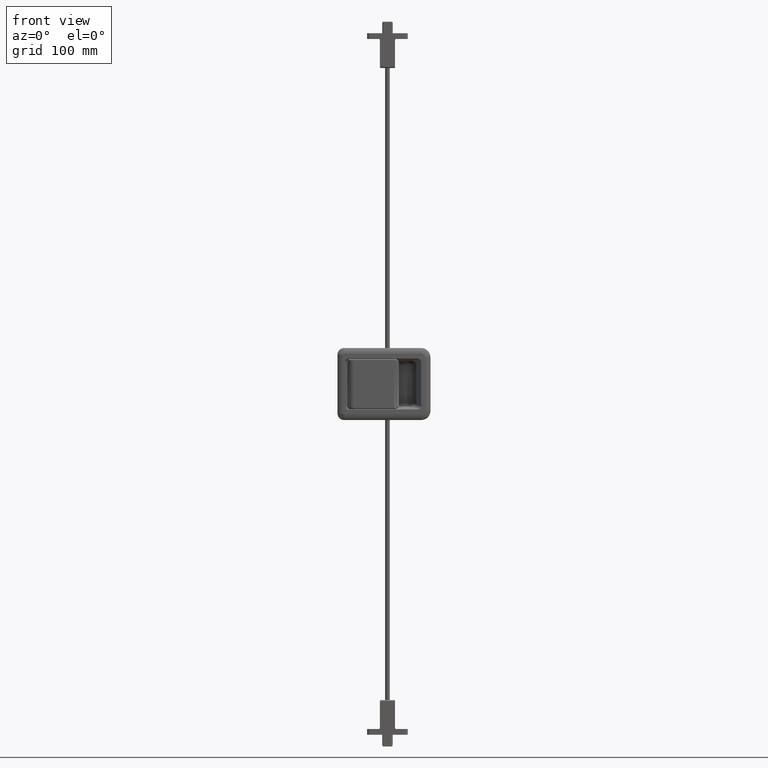
[diagram: clean part render]
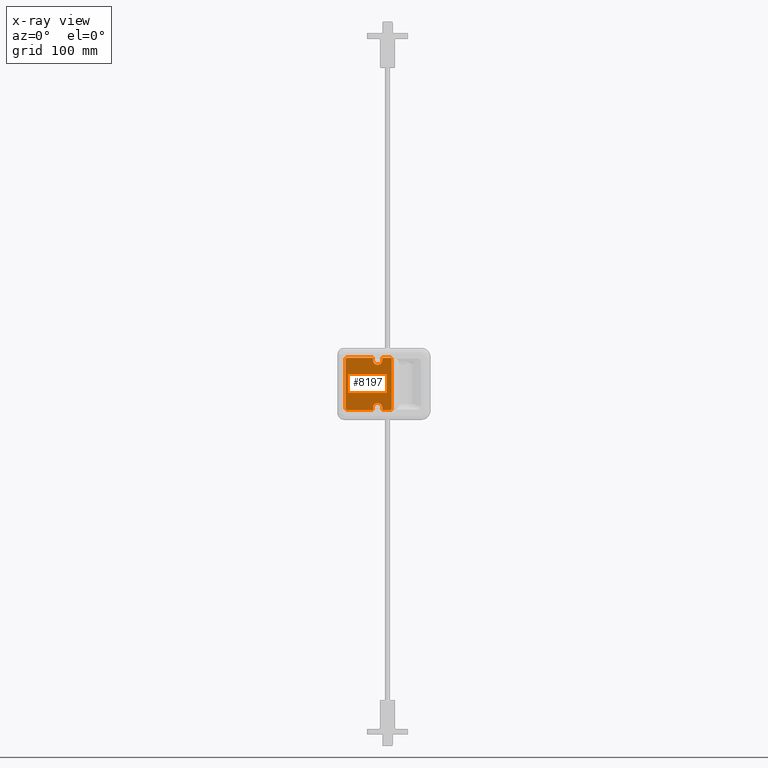
[diagram: x-ray — body ghosted, one internal face saturated and labeled with its STEP entity id]
A machine part, front view, then the same camera in x-ray: the body is ghosted and one INTERNAL B-rep face — a face not visible from any outside direction — is saturated and labeled: STEP entity #8197.
In plain terms, the highlighted face is a freeform B-spline surface patch.
Its self-contained STEP definition (entity closure, byte-faithful):
#7151=CARTESIAN_POINT('',(16.500000000000000,13.750000000000000,20.500000000000000));
#7152=VERTEX_POINT('',#7151);
#7153=CARTESIAN_POINT('',(16.500000000000000,13.750000000000000,22.449999999999999));
#7154=VERTEX_POINT('',#7153);
#7155=CARTESIAN_POINT('',(16.500000000000000,13.750000000000000,20.500000000000000));
#7156=CARTESIAN_POINT('',(16.500000000000000,13.750000000000000,22.449999999999999));
#7157=QUASI_UNIFORM_CURVE('',1,(#7155,#7156),.UNSPECIFIED.,.F.,.U.);
#7158=EDGE_CURVE('',#7152,#7154,#7157,.T.);
#7200=CARTESIAN_POINT('',(24.500000000000000,13.750000000000000,20.500000000000000));
#7201=VERTEX_POINT('',#7200);
#7202=CARTESIAN_POINT('',(20.499981883252950,13.750000000000000,16.500000000041030));
#7203=VERTEX_POINT('',#7202);
#7204=CARTESIAN_POINT('',(24.500000000000000,13.750000000000000,20.500000000000000));
#7205=CARTESIAN_POINT('',(24.500254233075971,13.750000000000011,20.041857580033071));
#7206=CARTESIAN_POINT('',(24.329639797546982,13.749999999999989,19.060145675611160));
#7207=CARTESIAN_POINT('',(23.541291267610241,13.750000000000011,17.743655497388200));
#7208=CARTESIAN_POINT('',(22.200915370813441,13.750000000000011,16.750280157867071));
#7209=CARTESIAN_POINT('',(21.089204154078882,13.749999999999989,16.499164993129469));
#7210=CARTESIAN_POINT('',(20.499981883252950,13.750000000000000,16.500000000041030));
#7211=B_SPLINE_CURVE_WITH_KNOTS('',3,(#7204,#7205,#7206,#7207,#7208,#7209,#7210),.UNSPECIFIED.,.F.,.U.,(4,1,1,1,4),(0.000000881623774,1.374586051367190,2.945560808224033,4.516498488839313,6.283825745046069),.UNSPECIFIED.);
#7212=EDGE_CURVE('',#7201,#7203,#7211,.T.);
#7214=CARTESIAN_POINT('',(20.499981883252950,13.750000000000000,16.500000000041030));
#7215=CARTESIAN_POINT('',(19.910752602650149,13.749999999999989,16.499168180203569));
#7216=CARTESIAN_POINT('',(18.799057106938029,13.750000000000000,16.750287032874141));
#7217=CARTESIAN_POINT('',(17.458677692135929,13.750000000000020,17.743638558698368));
#7218=CARTESIAN_POINT('',(16.670356223996411,13.749999999999959,19.060177457855701));
#7219=CARTESIAN_POINT('',(16.499739817277280,13.750000000000041,20.041837290952301));
#7220=CARTESIAN_POINT('',(16.500000000000000,13.750000000000000,20.500000000000000));
#7221=B_SPLINE_CURVE_WITH_KNOTS('',3,(#7214,#7215,#7216,#7217,#7218,#7219,#7220),.UNSPECIFIED.,.F.,.U.,(4,1,1,1,4),(0.000000977180087,1.767322467654096,3.338255002949419,4.909224635225035,6.283805321258684),.UNSPECIFIED.);
#7222=EDGE_CURVE('',#7203,#7152,#7221,.T.);
#7262=CARTESIAN_POINT('',(24.500000000000000,13.750000000000000,22.449999999999999));
#7263=VERTEX_POINT('',#7262);
#7264=CARTESIAN_POINT('',(24.500000000000000,13.750000000000000,22.449999999999999));
#7265=CARTESIAN_POINT('',(24.500000000000000,13.750000000000000,20.500000000000000));
#7266=QUASI_UNIFORM_CURVE('',1,(#7264,#7265),.UNSPECIFIED.,.F.,.U.);
#7267=EDGE_CURVE('',#7263,#7201,#7266,.T.);
#7290=CARTESIAN_POINT('',(16.500000000000000,13.750000000000000,-20.500000000000000));
#7291=VERTEX_POINT('',#7290);
#7292=CARTESIAN_POINT('',(16.500000000000000,13.750000000000000,-22.449999999999999));
#7293=VERTEX_POINT('',#7292);
#7294=CARTESIAN_POINT('',(16.500000000000000,13.750000000000000,-20.500000000000000));
#7295=CARTESIAN_POINT('',(16.500000000000000,13.750000000000000,-22.449999999999999));
#7296=QUASI_UNIFORM_CURVE('',1,(#7294,#7295),.UNSPECIFIED.,.F.,.U.);
#7297=EDGE_CURVE('',#7291,#7293,#7296,.T.);
#7339=CARTESIAN_POINT('',(20.499981883252950,13.750000000000000,-16.500000000041030));
#7340=VERTEX_POINT('',#7339);
#7341=CARTESIAN_POINT('',(20.499981883252950,13.750000000000000,-16.500000000041030));
#7342=CARTESIAN_POINT('',(19.910752602650149,13.749999999999989,-16.499168180203569));
#7343=CARTESIAN_POINT('',(18.799057106938029,13.750000000000000,-16.750287032874141));
#7344=CARTESIAN_POINT('',(17.458677692135929,13.750000000000020,-17.743638558698368));
#7345=CARTESIAN_POINT('',(16.670356223996411,13.749999999999959,-19.060177457855701));
#7346=CARTESIAN_POINT('',(16.499739817277280,13.750000000000041,-20.041837290952301));
#7347=CARTESIAN_POINT('',(16.500000000000000,13.750000000000000,-20.500000000000000));
#7348=B_SPLINE_CURVE_WITH_KNOTS('',3,(#7341,#7342,#7343,#7344,#7345,#7346,#7347),.UNSPECIFIED.,.F.,.U.,(4,1,1,1,4),(0.000000977180087,1.767322467654096,3.338255002949419,4.909224635225035,6.283805321258684),.UNSPECIFIED.);
#7349=EDGE_CURVE('',#7340,#7291,#7348,.T.);
#7351=CARTESIAN_POINT('',(24.500000000000000,13.750000000000000,-20.500000000000000));
#7352=VERTEX_POINT('',#7351);
#7353=CARTESIAN_POINT('',(24.500000000000000,13.750000000000000,-20.500000000000000));
#7354=CARTESIAN_POINT('',(24.500254233075971,13.750000000000011,-20.041857580033071));
#7355=CARTESIAN_POINT('',(24.329639797546982,13.749999999999989,-19.060145675611160));
#7356=CARTESIAN_POINT('',(23.541291267610241,13.750000000000011,-17.743655497388200));
#7357=CARTESIAN_POINT('',(22.200915370813441,13.750000000000011,-16.750280157867071));
#7358=CARTESIAN_POINT('',(21.089204154078882,13.749999999999989,-16.499164993129469));
#7359=CARTESIAN_POINT('',(20.499981883252950,13.750000000000000,-16.500000000041030));
#7360=B_SPLINE_CURVE_WITH_KNOTS('',3,(#7353,#7354,#7355,#7356,#7357,#7358,#7359),.UNSPECIFIED.,.F.,.U.,(4,1,1,1,4),(0.000000881623774,1.374586051367190,2.945560808224033,4.516498488839313,6.283825745046069),.UNSPECIFIED.);
#7361=EDGE_CURVE('',#7352,#7340,#7360,.T.);
#7401=CARTESIAN_POINT('',(24.500000000000000,13.750000000000000,-22.449999999999999));
#7402=VERTEX_POINT('',#7401);
#7403=CARTESIAN_POINT('',(24.500000000000000,13.750000000000000,-22.449999999999999));
#7404=CARTESIAN_POINT('',(24.500000000000000,13.750000000000000,-20.500000000000000));
#7405=QUASI_UNIFORM_CURVE('',1,(#7403,#7404),.UNSPECIFIED.,.F.,.U.);
#7406=EDGE_CURVE('',#7402,#7352,#7405,.T.);
#7451=CARTESIAN_POINT('',(-7.000000000000091,13.750000000000000,-21.449999999999999));
#7452=VERTEX_POINT('',#7451);
#7458=CARTESIAN_POINT('',(-6.000000000000091,13.750000000000000,-22.449999999999999));
#7459=VERTEX_POINT('',#7458);
#7460=CARTESIAN_POINT('',(-6.000000000000091,13.750000000000000,-22.449999999999999));
#7461=CARTESIAN_POINT('',(-6.229399464662726,13.750000000000020,-22.451254052878291));
#7462=CARTESIAN_POINT('',(-6.620412743983817,13.749999999999989,-22.308996576459261));
#7463=CARTESIAN_POINT('',(-6.941520271925950,13.750000000000020,-21.875456751799391));
#7464=CARTESIAN_POINT('',(-7.000097017114670,13.749999999999970,-21.580862027078791));
#7465=CARTESIAN_POINT('',(-7.000000000000091,13.750000000000000,-21.449999999999999));
#7466=B_SPLINE_CURVE_WITH_KNOTS('',3,(#7460,#7461,#7462,#7463,#7464,#7465),.UNSPECIFIED.,.F.,.U.,(4,1,1,4),(0.000004296705626,0.687565360555057,1.178569503355117,1.571424572238246),.UNSPECIFIED.);
#7467=EDGE_CURVE('',#7459,#7452,#7466,.T.);
#7491=CARTESIAN_POINT('',(-7.000000000000091,13.750000000000000,21.449999999999999));
#7492=VERTEX_POINT('',#7491);
#7493=CARTESIAN_POINT('',(-6.000000000000091,13.750000000000000,22.449999999999999));
#7494=VERTEX_POINT('',#7493);
#7495=CARTESIAN_POINT('',(-7.000000000000091,13.750000000000000,21.449999999999999));
#7496=CARTESIAN_POINT('',(-7.001246187072547,13.750000000000011,21.679367530478430));
#7497=CARTESIAN_POINT('',(-6.859025659911429,13.749999999999989,22.070477456531851));
#7498=CARTESIAN_POINT('',(-6.425438938951119,13.750000000000011,22.391468612505619));
#7499=CARTESIAN_POINT('',(-6.130847421056672,13.750000000000000,22.450107455430629));
#7500=CARTESIAN_POINT('',(-6.000000000000091,13.750000000000000,22.449999999999999));
#7501=B_SPLINE_CURVE_WITH_KNOTS('',3,(#7495,#7496,#7497,#7498,#7499,#7500),.UNSPECIFIED.,.F.,.U.,(4,1,1,4),(0.000004296705638,0.687565360555078,1.178569503355113,1.571424572238247),.UNSPECIFIED.);
#7502=EDGE_CURVE('',#7492,#7494,#7501,.T.);
#7544=CARTESIAN_POINT('',(32.700000000000003,13.750000000000000,-21.449999999999999));
#7545=VERTEX_POINT('',#7544);
#7546=CARTESIAN_POINT('',(31.699999999999999,13.750000000000000,-22.449999999999999));
#7547=VERTEX_POINT('',#7546);
#7548=CARTESIAN_POINT('',(32.700000000000003,13.750000000000000,-21.449999999999999));
#7549=CARTESIAN_POINT('',(32.700105665549543,13.750000000000011,-21.580878177839249));
#7550=CARTESIAN_POINT('',(32.647963122220432,13.749999999999989,-21.842731578614512));
#7551=CARTESIAN_POINT('',(32.444037189371983,13.750000000000011,-22.147662651411171));
#7552=CARTESIAN_POINT('',(32.125161803606773,13.749999999999989,-22.384311697499012));
#7553=CARTESIAN_POINT('',(31.863665445165601,13.749999999999989,-22.450285171044040));
#7554=CARTESIAN_POINT('',(31.699999999999999,13.750000000000000,-22.449999999999999));
#7555=B_SPLINE_CURVE_WITH_KNOTS('',3,(#7548,#7549,#7550,#7551,#7552,#7553,#7554),.UNSPECIFIED.,.F.,.U.,(4,1,1,1,4),(0.000004296705174,0.392859365588518,0.785714434471836,1.080312673519380,1.571424572238253),.UNSPECIFIED.);
#7556=EDGE_CURVE('',#7545,#7547,#7555,.T.);
#7612=CARTESIAN_POINT('',(32.700000000000003,13.750000000000000,21.449999999999999));
#7613=VERTEX_POINT('',#7612);
#7619=CARTESIAN_POINT('',(31.699999999999999,13.750000000000000,22.449999999999999));
#7620=VERTEX_POINT('',#7619);
#7621=CARTESIAN_POINT('',(31.699999999999999,13.750000000000000,22.449999999999999));
#7622=CARTESIAN_POINT('',(31.863573038238101,13.750000000000011,22.450262829990230));
#7623=CARTESIAN_POINT('',(32.223759247392501,13.750000000000000,22.359973069108861));
#7624=CARTESIAN_POINT('',(32.609950072212293,13.750000000000011,21.973773435623698));
#7625=CARTESIAN_POINT('',(32.700284042620247,13.749999999999989,21.613589538380118));
#7626=CARTESIAN_POINT('',(32.700000000000003,13.750000000000000,21.449999999999999));
#7627=B_SPLINE_CURVE_WITH_KNOTS('',3,(#7621,#7622,#7623,#7624,#7625,#7626),.UNSPECIFIED.,.F.,.U.,(4,1,1,4),(0.000004296706004,0.491116195424663,1.080312673519470,1.571424572238248),.UNSPECIFIED.);
#7628=EDGE_CURVE('',#7620,#7613,#7627,.T.);
#7957=CARTESIAN_POINT('',(-7.000000000000091,13.750000000000000,-21.449999999999999));
#7958=CARTESIAN_POINT('',(-7.000000000000091,13.750000000000000,21.449999999999999));
#7959=QUASI_UNIFORM_CURVE('',1,(#7957,#7958),.UNSPECIFIED.,.F.,.U.);
#7960=EDGE_CURVE('',#7452,#7492,#7959,.T.);
#8019=CARTESIAN_POINT('',(32.700000000000003,13.750000000000000,-21.449999999999999));
#8020=CARTESIAN_POINT('',(32.700000000000003,13.750000000000000,21.449999999999999));
#8021=QUASI_UNIFORM_CURVE('',1,(#8019,#8020),.UNSPECIFIED.,.F.,.U.);
#8022=EDGE_CURVE('',#7545,#7613,#8021,.T.);
#8069=CARTESIAN_POINT('',(-6.000000000000091,13.750000000000000,-22.449999999999999));
#8070=CARTESIAN_POINT('',(16.500000000000000,13.750000000000000,-22.449999999999999));
#8071=QUASI_UNIFORM_CURVE('',1,(#8069,#8070),.UNSPECIFIED.,.F.,.U.);
#8072=EDGE_CURVE('',#7459,#7293,#8071,.T.);
#8097=CARTESIAN_POINT('',(24.500000000000000,13.750000000000000,-22.449999999999999));
#8098=CARTESIAN_POINT('',(31.699999999999999,13.750000000000000,-22.449999999999999));
#8099=QUASI_UNIFORM_CURVE('',1,(#8097,#8098),.UNSPECIFIED.,.F.,.U.);
#8100=EDGE_CURVE('',#7402,#7547,#8099,.T.);
#8117=CARTESIAN_POINT('',(16.500000000000000,13.750000000000000,22.449999999999999));
#8118=CARTESIAN_POINT('',(-6.000000000000091,13.750000000000000,22.449999999999999));
#8119=QUASI_UNIFORM_CURVE('',1,(#8117,#8118),.UNSPECIFIED.,.F.,.U.);
#8120=EDGE_CURVE('',#7154,#7494,#8119,.T.);
#8133=CARTESIAN_POINT('',(31.699999999999999,13.750000000000000,22.449999999999999));
#8134=CARTESIAN_POINT('',(24.500000000000000,13.750000000000000,22.449999999999999));
#8135=QUASI_UNIFORM_CURVE('',1,(#8133,#8134),.UNSPECIFIED.,.F.,.U.);
#8136=EDGE_CURVE('',#7620,#7263,#8135,.T.);
#8172=CARTESIAN_POINT('',(-8.983014923053789,13.750000000000000,24.692755755953240));
#8173=CARTESIAN_POINT('',(-8.983014923053789,13.750000000000000,-24.692756157390519));
#8174=CARTESIAN_POINT('',(34.683015987890691,13.750000000000000,24.692755755953240));
#8175=CARTESIAN_POINT('',(34.683015987890691,13.750000000000000,-24.692756157390519));
#8176=B_SPLINE_SURFACE_WITH_KNOTS('',1,1,((#8172,#8174),(#8173,#8175)),.UNSPECIFIED.,.F.,.F.,.U.,(2,2),(2,2),(0.0,49.385511913343763),(0.0,43.666030910944478),.UNSPECIFIED.);
#8177=ORIENTED_EDGE('',*,*,#7267,.F.);
#8178=ORIENTED_EDGE('',*,*,#8136,.F.);
#8179=ORIENTED_EDGE('',*,*,#7628,.T.);
#8180=ORIENTED_EDGE('',*,*,#8022,.F.);
#8181=ORIENTED_EDGE('',*,*,#7556,.T.);
#8182=ORIENTED_EDGE('',*,*,#8100,.F.);
#8183=ORIENTED_EDGE('',*,*,#7406,.T.);
#8184=ORIENTED_EDGE('',*,*,#7361,.T.);
#8185=ORIENTED_EDGE('',*,*,#7349,.T.);
#8186=ORIENTED_EDGE('',*,*,#7297,.T.);
#8187=ORIENTED_EDGE('',*,*,#8072,.F.);
#8188=ORIENTED_EDGE('',*,*,#7467,.T.);
#8189=ORIENTED_EDGE('',*,*,#7960,.T.);
#8190=ORIENTED_EDGE('',*,*,#7502,.T.);
#8191=ORIENTED_EDGE('',*,*,#8120,.F.);
#8192=ORIENTED_EDGE('',*,*,#7158,.F.);
#8193=ORIENTED_EDGE('',*,*,#7222,.F.);
#8194=ORIENTED_EDGE('',*,*,#7212,.F.);
#8195=EDGE_LOOP('',(#8177,#8178,#8179,#8180,#8181,#8182,#8183,#8184,#8185,#8186,#8187,#8188,#8189,#8190,#8191,#8192,#8193,#8194));
#8196=FACE_OUTER_BOUND('',#8195,.T.);
#8197=ADVANCED_FACE('',(#8196),#8176,.F.);